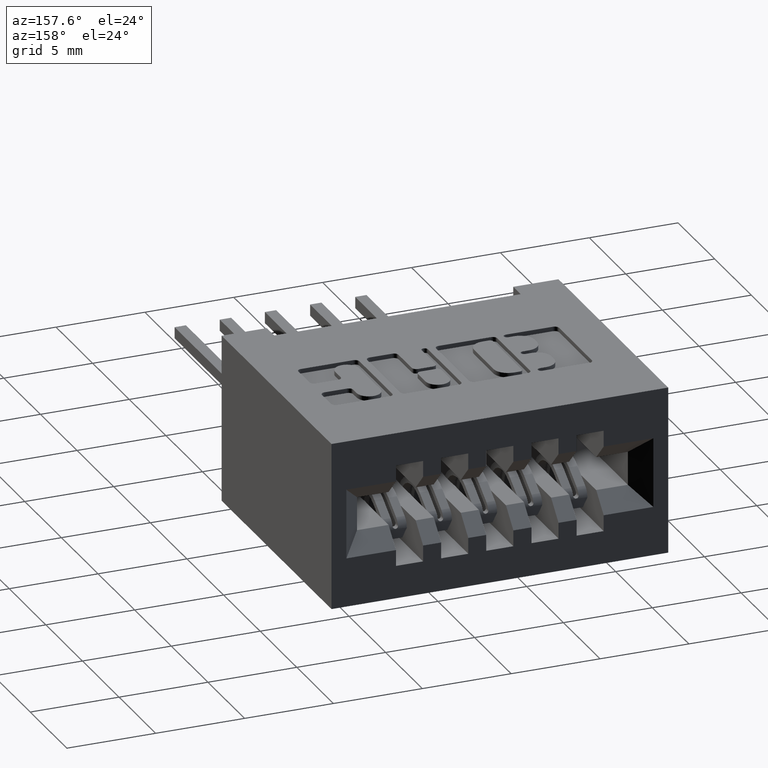
[diagram: clean part render]
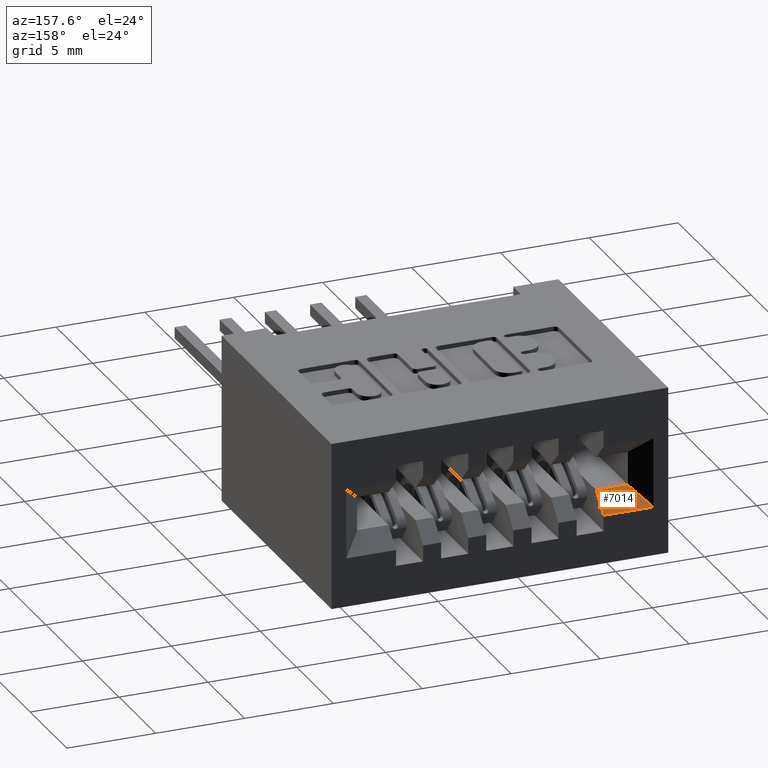
[diagram: same view with one face highlighted and labeled with its STEP entity id]
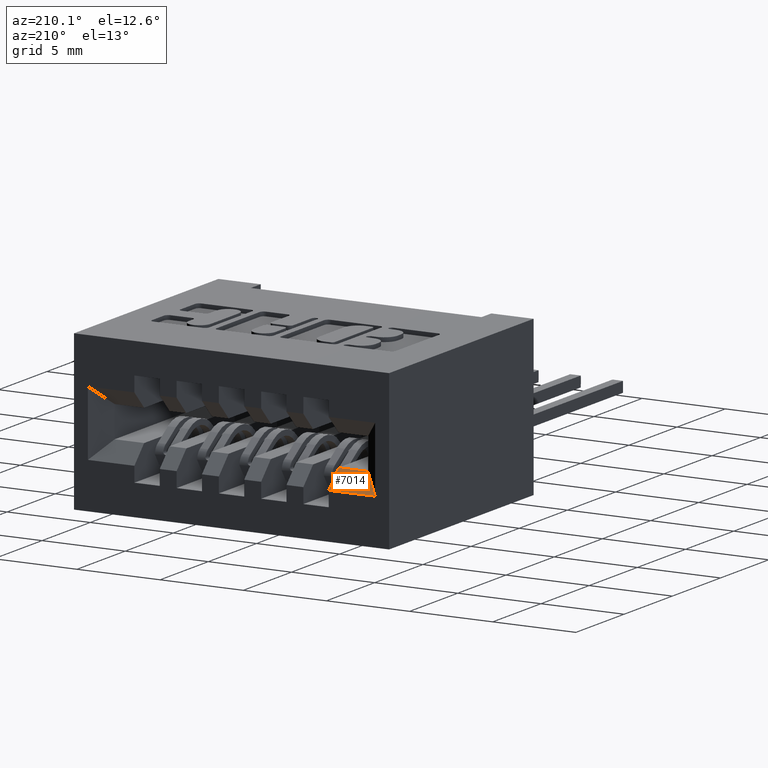
[diagram: same view with one face highlighted and labeled with its STEP entity id]
A machine part, auxiliary view. The second image highlights one B-rep face of the part: STEP entity #7014.
A second angle (auxiliary view) of the same face is appended — the face is thin or edge-on in the first view.
In plain terms, the highlighted planar face has unit normal (0, -0.7071, -0.7071).
Its self-contained STEP definition (entity closure, byte-faithful):
#22 = CARTESIAN_POINT ( 'NONE',  ( 0.3499999999999999800, 0.5499999999999998200, -0.2220000000000002000 ) ) ;
#147 = DIRECTION ( 'NONE',  ( 0.5773502691896269500, -0.5773502691896230700, 0.5773502691896269500 ) ) ;
#217 = LINE ( 'NONE', #2585, #6477 ) ;
#430 = ORIENTED_EDGE ( 'NONE', *, *, #6709, .F. ) ;
#431 = EDGE_CURVE ( 'NONE', #4926, #4706, #6625, .T. ) ;
#588 = CARTESIAN_POINT ( 'NONE',  ( 0.4200000000000000400, 0.5899999999999999700, -0.2620000000000005700 ) ) ;
#618 = ORIENTED_EDGE ( 'NONE', *, *, #431, .T. ) ;
#874 = AXIS2_PLACEMENT_3D ( 'NONE', #22, #2941, #6978 ) ;
#1053 = DIRECTION ( 'NONE',  ( -1.000000000000000000, 0.0000000000000000000, 0.0000000000000000000 ) ) ;
#1125 = FACE_OUTER_BOUND ( 'NONE', #6065, .T. ) ;
#1430 = CARTESIAN_POINT ( 'NONE',  ( 0.0000000000000000000, 0.5899999999999999700, -0.2620000000000005700 ) ) ;
#1449 = DIRECTION ( 'NONE',  ( -0.0000000000000000000, -0.7071067811865451300, 0.7071067811865499000 ) ) ;
#1678 = VERTEX_POINT ( 'NONE', #4979 ) ;
#1748 = PLANE ( 'NONE',  #874 ) ;
#1998 = CARTESIAN_POINT ( 'NONE',  ( 0.3499999999999999800, 0.5499999999999998200, -0.2220000000000002000 ) ) ;
#2022 = LINE ( 'NONE', #1430, #2211 ) ;
#2146 = ORIENTED_EDGE ( 'NONE', *, *, #5606, .F. ) ;
#2175 = VECTOR ( 'NONE', #147, 39.37007874015748900 ) ;
#2211 = VECTOR ( 'NONE', #5485, 39.37007874015748100 ) ;
#2585 = CARTESIAN_POINT ( 'NONE',  ( 0.4200000000000000400, 0.5499999999999998200, -0.2220000000000002000 ) ) ;
#2941 = DIRECTION ( 'NONE',  ( 0.0000000000000000000, -0.7071067811865499000, -0.7071067811865451300 ) ) ;
#3197 = CARTESIAN_POINT ( 'NONE',  ( 0.3099999999999995500, 0.5899999999999999700, -0.2620000000000005700 ) ) ;
#3595 = VERTEX_POINT ( 'NONE', #588 ) ;
#3970 = CARTESIAN_POINT ( 'NONE',  ( 0.3499999999999999800, 0.5499999999999998200, -0.2220000000000002000 ) ) ;
#4706 = VERTEX_POINT ( 'NONE', #5674 ) ;
#4926 = VERTEX_POINT ( 'NONE', #3197 ) ;
#4961 = VECTOR ( 'NONE', #1053, 39.37007874015748100 ) ;
#4979 = CARTESIAN_POINT ( 'NONE',  ( 0.4200000000000000400, 0.5499999999999998200, -0.2220000000000001100 ) ) ;
#5081 = ORIENTED_EDGE ( 'NONE', *, *, #6025, .F. ) ;
#5485 = DIRECTION ( 'NONE',  ( 1.000000000000000000, 0.0000000000000000000, 0.0000000000000000000 ) ) ;
#5606 = EDGE_CURVE ( 'NONE', #1678, #4706, #6320, .T. ) ;
#5674 = CARTESIAN_POINT ( 'NONE',  ( 0.3499999999999999800, 0.5499999999999998200, -0.2220000000000002000 ) ) ;
#6025 = EDGE_CURVE ( 'NONE', #4926, #3595, #2022, .T. ) ;
#6065 = EDGE_LOOP ( 'NONE', ( #430, #5081, #618, #2146 ) ) ;
#6320 = LINE ( 'NONE', #3970, #4961 ) ;
#6477 = VECTOR ( 'NONE', #1449, 39.37007874015748100 ) ;
#6625 = LINE ( 'NONE', #1998, #2175 ) ;
#6709 = EDGE_CURVE ( 'NONE', #3595, #1678, #217, .T. ) ;
#6978 = DIRECTION ( 'NONE',  ( 0.0000000000000000000, 0.7071067811865451300, -0.7071067811865499000 ) ) ;
#7014 = ADVANCED_FACE ( 'NONE', ( #1125 ), #1748, .F. ) ;